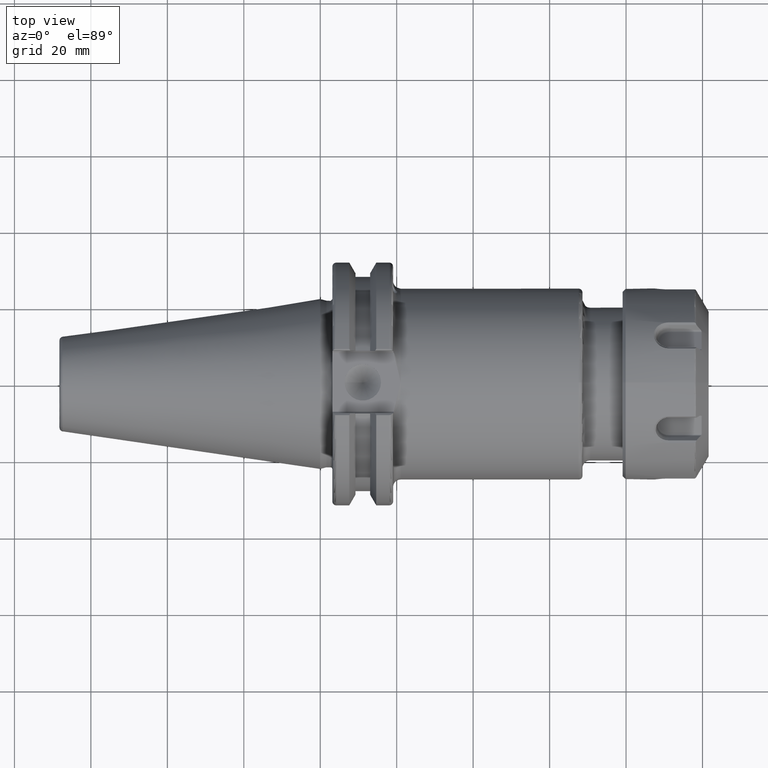
[diagram: clean part render]
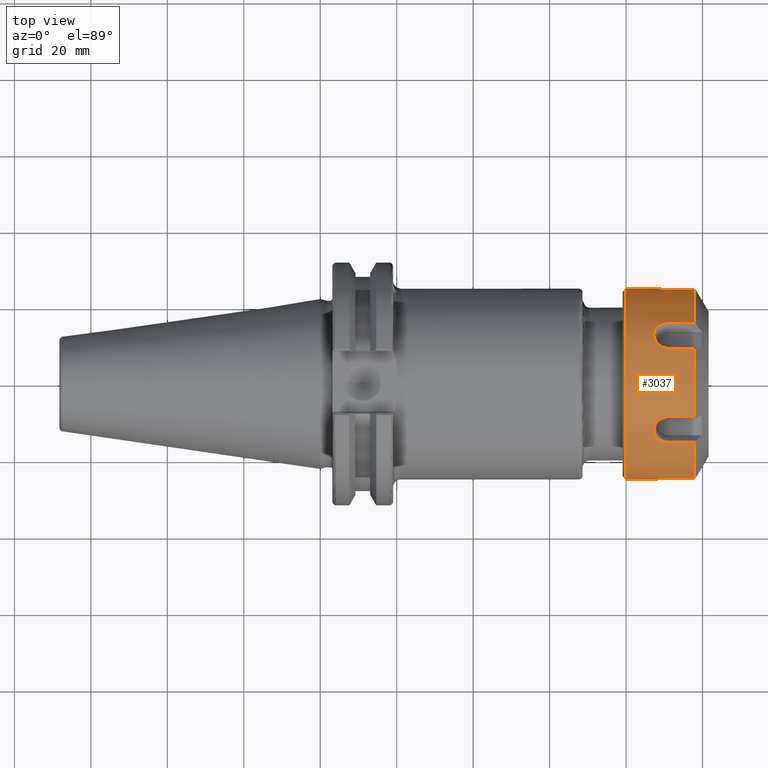
[diagram: same view with one face highlighted and labeled with its STEP entity id]
A machine part, top view. The second image highlights one B-rep face of the part: STEP entity #3037.
In plain terms, the highlighted cylindrical surface (bore or boss wall) has radius 25 mm, axis along (1, 0, 0).
Its self-contained STEP definition (entity closure, byte-faithful):
#243=B_SPLINE_CURVE_WITH_KNOTS('',3,(#5688,#5689,#5690,#5691,#5692,#5693,
#5694,#5695,#5696,#5697,#5698,#5699,#5700,#5701,#5702,#5703,#5704,#5705,
#5706,#5707,#5708,#5709,#5710,#5711,#5712,#5713),.UNSPECIFIED.,.F.,.F.,
(4,2,2,2,2,2,2,2,2,2,2,2,4),(9.9999995238631E-7,0.0879052907423527,0.176637565379742,
0.235903650970046,0.390130017504631,0.466901397524831,0.619877047493406,
0.772895245938568,0.849748430711965,1.00354549994743,1.06255814926592,1.15065991936563,
1.23696691744975),.UNSPECIFIED.);
#244=B_SPLINE_CURVE_WITH_KNOTS('',3,(#5721,#5722,#5723,#5724,#5725,#5726,
#5727,#5728,#5729,#5730,#5731,#5732,#5733,#5734,#5735,#5736,#5737,#5738,
#5739,#5740,#5741,#5742,#5743,#5744,#5745,#5746),.UNSPECIFIED.,.F.,.F.,
(4,2,2,2,2,2,2,2,2,2,2,2,4),(1.00000009417567E-6,0.0878138369275421,0.176555140054308,
0.235820765056358,0.389974853515028,0.466697048924996,0.619573178814066,
0.772490695512649,0.849291747057756,1.00296705428542,1.06195384990398,1.14997782321717,
1.23616298191316),.UNSPECIFIED.);
#245=B_SPLINE_CURVE_WITH_KNOTS('',3,(#5754,#5755,#5756,#5757,#5758,#5759,
#5760,#5761,#5762,#5763,#5764,#5765,#5766,#5767,#5768,#5769,#5770,#5771,
#5772,#5773,#5774,#5775,#5776,#5777,#5778,#5779),.UNSPECIFIED.,.F.,.F.,
(4,2,2,2,2,2,2,2,2,2,2,2,4),(9.99999951775687E-7,0.0878941569707288,0.176624334532777,
0.235888687428025,0.390110943020404,0.466875792134982,0.61983845664042,
0.772844514946801,0.849692191333624,1.003474767993,1.06248200532863,1.15057983966351,
1.23688736597224),.UNSPECIFIED.);
#246=B_SPLINE_CURVE_WITH_KNOTS('',3,(#5787,#5788,#5789,#5790,#5791,#5792,
#5793,#5794,#5795,#5796,#5797,#5798,#5799,#5800,#5801,#5802,#5803,#5804,
#5805,#5806,#5807,#5808,#5809,#5810,#5811,#5812),.UNSPECIFIED.,.F.,.F.,
(4,2,2,2,2,2,2,2,2,2,2,2,4),(9.99999952469577E-7,0.087905230227901,0.176637529735317,
0.23590362205516,0.390129919451193,0.466901259045231,0.619876828803479,
0.772894942890079,0.849748081258391,1.00354500406063,1.06255762506737,1.1506592888794,
1.2369661055211),.UNSPECIFIED.);
#247=B_SPLINE_CURVE_WITH_KNOTS('',3,(#5817,#5818,#5819,#5820,#5821,#5822,
#5823,#5824,#5825,#5826,#5827,#5828,#5829,#5830,#5831,#5832,#5833,#5834,
#5835,#5836,#5837,#5838,#5839,#5840,#5841,#5842),.UNSPECIFIED.,.F.,.F.,
(4,2,2,2,2,2,2,2,2,2,2,2,4),(1.00000009425893E-6,0.0878137755469969,0.176555099847401,
0.235820733272125,0.389974766086827,0.466696934474965,0.619573008826759,
0.772490466286766,0.849291481801536,1.00296667617739,1.06195345833607,1.14997734942518,
1.23616236019383),.UNSPECIFIED.);
#248=B_SPLINE_CURVE_WITH_KNOTS('',3,(#5850,#5851,#5852,#5853,#5854,#5855,
#5856,#5857,#5858,#5859,#5860,#5861,#5862,#5863,#5864,#5865,#5866,#5867,
#5868,#5869,#5870,#5871,#5872,#5873,#5874,#5875),.UNSPECIFIED.,.F.,.F.,
(4,2,2,2,2,2,2,2,2,2,2,2,4),(9.99999951900588E-7,0.0878942147625397,0.176624366940175,
0.23588871226361,0.390111034009128,0.466875921238402,0.619838663234569,
0.772844800309569,0.849692521299405,1.00347524440874,1.06248250865998,1.15058044952841,
1.2368881619258),.UNSPECIFIED.);
#318=CYLINDRICAL_SURFACE('',#3406,25.);
#529=FACE_OUTER_BOUND('',#723,.T.);
#723=EDGE_LOOP('',(#2603,#2604,#2605,#2606,#2607,#2608,#2609,#2610,#2611,
#2612,#2613,#2614,#2615,#2616,#2617,#2618,#2619,#2620,#2621,#2622,#2623,
#2624,#2625,#2626,#2627,#2628,#2629,#2630));
#889=LINE('',#5681,#1062);
#890=LINE('',#5686,#1063);
#891=LINE('',#5715,#1064);
#892=LINE('',#5719,#1065);
#893=LINE('',#5748,#1066);
#894=LINE('',#5752,#1067);
#895=LINE('',#5781,#1068);
#896=LINE('',#5785,#1069);
#897=LINE('',#5813,#1070);
#898=LINE('',#5815,#1071);
#899=LINE('',#5844,#1072);
#900=LINE('',#5848,#1073);
#901=LINE('',#5876,#1074);
#1062=VECTOR('',#4061,25.);
#1063=VECTOR('',#4066,6.64722344657);
#1064=VECTOR('',#4067,6.647223564864);
#1065=VECTOR('',#4070,6.647222883786);
#1066=VECTOR('',#4071,6.647222910959);
#1067=VECTOR('',#4074,6.647223440681);
#1068=VECTOR('',#4075,6.647223598116);
#1069=VECTOR('',#4078,6.647223446385);
#1070=VECTOR('',#4079,6.647223564616);
#1071=VECTOR('',#4080,6.64722288378);
#1072=VECTOR('',#4081,6.647222910886);
#1073=VECTOR('',#4084,6.647223440838);
#1074=VECTOR('',#4085,6.647223598416);
#1237=CIRCLE('',#3405,25.);
#1238=CIRCLE('',#3407,25.);
#1239=CIRCLE('',#3408,25.);
#1240=CIRCLE('',#3409,25.);
#1241=CIRCLE('',#3410,25.);
#1242=CIRCLE('',#3411,25.);
#1243=CIRCLE('',#3412,25.);
#1244=CIRCLE('',#3413,25.);
#1497=VERTEX_POINT('',#5657);
#1498=VERTEX_POINT('',#5658);
#1499=VERTEX_POINT('',#5677);
#1500=VERTEX_POINT('',#5678);
#1501=VERTEX_POINT('',#5680);
#1502=VERTEX_POINT('',#5683);
#1503=VERTEX_POINT('',#5685);
#1504=VERTEX_POINT('',#5687);
#1505=VERTEX_POINT('',#5714);
#1506=VERTEX_POINT('',#5716);
#1507=VERTEX_POINT('',#5718);
#1508=VERTEX_POINT('',#5720);
#1509=VERTEX_POINT('',#5747);
#1510=VERTEX_POINT('',#5749);
#1511=VERTEX_POINT('',#5751);
#1512=VERTEX_POINT('',#5753);
#1513=VERTEX_POINT('',#5780);
#1514=VERTEX_POINT('',#5782);
#1515=VERTEX_POINT('',#5784);
#1516=VERTEX_POINT('',#5786);
#1517=VERTEX_POINT('',#5814);
#1518=VERTEX_POINT('',#5816);
#1519=VERTEX_POINT('',#5843);
#1520=VERTEX_POINT('',#5845);
#1521=VERTEX_POINT('',#5847);
#1522=VERTEX_POINT('',#5849);
#1879=EDGE_CURVE('',#1497,#1498,#1237,.T.);
#1882=EDGE_CURVE('',#1499,#1500,#1238,.T.);
#1883=EDGE_CURVE('',#1500,#1501,#889,.T.);
#1884=EDGE_CURVE('',#1501,#1501,#1239,.T.);
#1885=EDGE_CURVE('',#1500,#1502,#1240,.T.);
#1886=EDGE_CURVE('',#1502,#1503,#890,.T.);
#1887=EDGE_CURVE('',#1503,#1504,#243,.T.);
#1888=EDGE_CURVE('',#1504,#1505,#891,.T.);
#1889=EDGE_CURVE('',#1505,#1506,#1241,.T.);
#1890=EDGE_CURVE('',#1506,#1507,#892,.T.);
#1891=EDGE_CURVE('',#1507,#1508,#244,.T.);
#1892=EDGE_CURVE('',#1508,#1509,#893,.T.);
#1893=EDGE_CURVE('',#1509,#1510,#1242,.T.);
#1894=EDGE_CURVE('',#1510,#1511,#894,.T.);
#1895=EDGE_CURVE('',#1511,#1512,#245,.T.);
#1896=EDGE_CURVE('',#1512,#1513,#895,.T.);
#1897=EDGE_CURVE('',#1513,#1514,#1243,.T.);
#1898=EDGE_CURVE('',#1514,#1515,#896,.T.);
#1899=EDGE_CURVE('',#1515,#1516,#246,.T.);
#1900=EDGE_CURVE('',#1516,#1497,#897,.T.);
#1901=EDGE_CURVE('',#1498,#1517,#898,.T.);
#1902=EDGE_CURVE('',#1517,#1518,#247,.T.);
#1903=EDGE_CURVE('',#1518,#1519,#899,.T.);
#1904=EDGE_CURVE('',#1519,#1520,#1244,.T.);
#1905=EDGE_CURVE('',#1520,#1521,#900,.T.);
#1906=EDGE_CURVE('',#1521,#1522,#248,.T.);
#1907=EDGE_CURVE('',#1522,#1499,#901,.T.);
#2603=ORIENTED_EDGE('',*,*,#1882,.T.);
#2604=ORIENTED_EDGE('',*,*,#1883,.T.);
#2605=ORIENTED_EDGE('',*,*,#1884,.F.);
#2606=ORIENTED_EDGE('',*,*,#1883,.F.);
#2607=ORIENTED_EDGE('',*,*,#1885,.T.);
#2608=ORIENTED_EDGE('',*,*,#1886,.T.);
#2609=ORIENTED_EDGE('',*,*,#1887,.T.);
#2610=ORIENTED_EDGE('',*,*,#1888,.T.);
#2611=ORIENTED_EDGE('',*,*,#1889,.T.);
#2612=ORIENTED_EDGE('',*,*,#1890,.T.);
#2613=ORIENTED_EDGE('',*,*,#1891,.T.);
#2614=ORIENTED_EDGE('',*,*,#1892,.T.);
#2615=ORIENTED_EDGE('',*,*,#1893,.T.);
#2616=ORIENTED_EDGE('',*,*,#1894,.T.);
#2617=ORIENTED_EDGE('',*,*,#1895,.T.);
#2618=ORIENTED_EDGE('',*,*,#1896,.T.);
#2619=ORIENTED_EDGE('',*,*,#1897,.T.);
#2620=ORIENTED_EDGE('',*,*,#1898,.T.);
#2621=ORIENTED_EDGE('',*,*,#1899,.T.);
#2622=ORIENTED_EDGE('',*,*,#1900,.T.);
#2623=ORIENTED_EDGE('',*,*,#1879,.T.);
#2624=ORIENTED_EDGE('',*,*,#1901,.T.);
#2625=ORIENTED_EDGE('',*,*,#1902,.T.);
#2626=ORIENTED_EDGE('',*,*,#1903,.T.);
#2627=ORIENTED_EDGE('',*,*,#1904,.T.);
#2628=ORIENTED_EDGE('',*,*,#1905,.T.);
#2629=ORIENTED_EDGE('',*,*,#1906,.T.);
#2630=ORIENTED_EDGE('',*,*,#1907,.T.);
#3037=ADVANCED_FACE('',(#529),#318,.T.);
#3405=AXIS2_PLACEMENT_3D('',#5659,#4055,#4056);
#3406=AXIS2_PLACEMENT_3D('',#5676,#4057,#4058);
#3407=AXIS2_PLACEMENT_3D('',#5679,#4059,#4060);
#3408=AXIS2_PLACEMENT_3D('',#5682,#4062,#4063);
#3409=AXIS2_PLACEMENT_3D('',#5684,#4064,#4065);
#3410=AXIS2_PLACEMENT_3D('',#5717,#4068,#4069);
#3411=AXIS2_PLACEMENT_3D('',#5750,#4072,#4073);
#3412=AXIS2_PLACEMENT_3D('',#5783,#4076,#4077);
#3413=AXIS2_PLACEMENT_3D('',#5846,#4082,#4083);
#4055=DIRECTION('center_axis',(-1.,0.,0.));
#4056=DIRECTION('ref_axis',(0.,-0.631277286733596,-0.775557210819595));
#4057=DIRECTION('center_axis',(1.,0.,0.));
#4058=DIRECTION('ref_axis',(0.,0.,-1.));
#4059=DIRECTION('center_axis',(-1.,0.,0.));
#4060=DIRECTION('ref_axis',(0.,0.,1.));
#4061=DIRECTION('',(-1.,0.,0.));
#4062=DIRECTION('center_axis',(-1.,0.,0.));
#4063=DIRECTION('ref_axis',(0.,0.,-1.));
#4064=DIRECTION('center_axis',(-1.,0.,0.));
#4065=DIRECTION('ref_axis',(0.,0.,1.));
#4066=DIRECTION('',(-1.,-1.159560992356E-10,2.11509500553E-11));
#4067=DIRECTION('',(1.,-1.276633033488E-10,1.526081585287E-10));
#4068=DIRECTION('center_axis',(-1.,0.,0.));
#4069=DIRECTION('ref_axis',(0.,0.631277286733596,0.775557210819595));
#4070=DIRECTION('',(-1.,7.686741409635E-11,-2.238710456628E-10));
#4071=DIRECTION('',(1.,-7.310370522877E-11,-1.968159154923E-10));
#4072=DIRECTION('center_axis',(-1.,0.,0.));
#4073=DIRECTION('ref_axis',(0.,0.987290890024773,-0.158923561733596));
#4074=DIRECTION('',(-1.,7.459753134974E-11,8.763849718101E-11));
#4075=DIRECTION('',(1.,2.171785744726E-10,3.807106787261E-11));
#4076=DIRECTION('center_axis',(-1.,0.,0.));
#4077=DIRECTION('ref_axis',(0.,0.,-1.));
#4078=DIRECTION('',(-1.,1.158545507345E-10,-2.113331268409E-11));
#4079=DIRECTION('',(1.,1.275572118917E-10,-1.524830935366E-10));
#4080=DIRECTION('',(-1.,-7.687115535743E-11,2.238859438988E-10));
#4081=DIRECTION('',(1.,7.311706687595E-11,1.968496536516E-10));
#4082=DIRECTION('center_axis',(-1.,0.,0.));
#4083=DIRECTION('ref_axis',(0.,-0.987290890024773,0.158923561733596));
#4084=DIRECTION('',(-1.,-7.46531157925E-11,-8.770583987134E-11));
#4085=DIRECTION('',(1.,-2.173739217127E-10,-3.81079460111E-11));
#5657=CARTESIAN_POINT('',(7.497223250267,-15.78193216834,-19.38893027049));
#5658=CARTESIAN_POINT('',(7.497223250267,-24.68227225062,-3.97308904334));
#5659=CARTESIAN_POINT('Origin',(7.497223250267,0.,0.));
#5676=CARTESIAN_POINT('Origin',(-11.25,0.,0.));
#5677=CARTESIAN_POINT('',(7.497223250268,-8.90034008228,23.36201931383));
#5678=CARTESIAN_POINT('',(7.497223250268,-3.06161699786838E-15,25.));
#5679=CARTESIAN_POINT('Origin',(7.497223250267,0.,0.));
#5680=CARTESIAN_POINT('',(-10.45,0.,25.));
#5681=CARTESIAN_POINT('',(-11.25,-3.06161699786838E-15,25.));
#5682=CARTESIAN_POINT('Origin',(-10.45,0.,0.));
#5683=CARTESIAN_POINT('',(7.497223250267,8.90034008228,23.36201931383));
#5684=CARTESIAN_POINT('Origin',(7.497223250267,0.,0.));
#5685=CARTESIAN_POINT('',(0.849999803697,8.900340081509,23.36201931397));
#5686=CARTESIAN_POINT('',(7.497223250267,8.90034008228,23.36201931383));
#5687=CARTESIAN_POINT('',(0.849999685403604,15.7819321692076,19.3889302699045));
#5688=CARTESIAN_POINT('Ctrl Pts',(0.849999803697697,8.90034008142218,23.3620193141567));
#5689=CARTESIAN_POINT('Ctrl Pts',(0.556988214806367,8.89906306446611,23.3625058254058));
#5690=CARTESIAN_POINT('Ctrl Pts',(0.26261724777573,8.93153175889461,23.3502062834946));
#5691=CARTESIAN_POINT('Ctrl Pts',(-0.31125534425957,9.05580002296358,23.3022952116997));
#5692=CARTESIAN_POINT('Ctrl Pts',(-0.593923216593934,9.14887656054965,23.2661811432127));
#5693=CARTESIAN_POINT('Ctrl Pts',(-1.04056938179903,9.35159728105322,23.1852381718461));
#5694=CARTESIAN_POINT('Ctrl Pts',(-1.21262512280427,9.44524603269654,23.1473582448027));
#5695=CARTESIAN_POINT('Ctrl Pts',(-1.80200428015579,9.82286285775052,22.9912699438263));
#5696=CARTESIAN_POINT('Ctrl Pts',(-2.16698210272784,10.1683862390945,22.8428160957234));
#5697=CARTESIAN_POINT('Ctrl Pts',(-2.59176378383641,10.7606138713495,22.5667088807953));
#5698=CARTESIAN_POINT('Ctrl Pts',(-2.7113454614375,10.9677985476459,22.466974573432));
#5699=CARTESIAN_POINT('Ctrl Pts',(-3.00077380839491,11.6099006832519,22.1458509566706));
#5700=CARTESIAN_POINT('Ctrl Pts',(-3.09929483965554,12.0593085624536,21.9052093593481));
#5701=CARTESIAN_POINT('Ctrl Pts',(-3.09776452633922,12.9511394909136,21.3900269627963));
#5702=CARTESIAN_POINT('Ctrl Pts',(-2.99750238481055,13.3841619924121,21.1208830779851));
#5703=CARTESIAN_POINT('Ctrl Pts',(-2.7062196300935,13.9819654737833,20.7258782143283));
#5704=CARTESIAN_POINT('Ctrl Pts',(-2.58612454090403,14.1712825668685,20.5966440251347));
#5705=CARTESIAN_POINT('Ctrl Pts',(-2.1603467743026,14.7040545894526,20.2232287059954));
#5706=CARTESIAN_POINT('Ctrl Pts',(-1.79444321211271,15.0055297377623,19.9980251897456));
#5707=CARTESIAN_POINT('Ctrl Pts',(-1.20143698934867,15.3289483623426,19.7493326814338));
#5708=CARTESIAN_POINT('Ctrl Pts',(-1.02817443647387,15.4085047352194,19.6871927068306));
#5709=CARTESIAN_POINT('Ctrl Pts',(-0.58042265698393,15.5788973434881,19.5528729525399));
#5710=CARTESIAN_POINT('Ctrl Pts',(-0.297961571865993,15.6556420407217,19.491156670446));
#5711=CARTESIAN_POINT('Ctrl Pts',(0.271006084886863,15.7568242876686,19.4094469361681));
#5712=CARTESIAN_POINT('Ctrl Pts',(0.561474266649588,15.7830370456073,19.3880309378373));
#5713=CARTESIAN_POINT('Ctrl Pts',(0.849999685406121,15.7819321695438,19.3889302695099));
#5714=CARTESIAN_POINT('',(7.497223250267,15.78193216834,19.38893027049));
#5715=CARTESIAN_POINT('',(0.8499996854036,15.78193216919,19.38893026948));
#5716=CARTESIAN_POINT('',(7.497223250267,24.68227225062,3.97308904334));
#5717=CARTESIAN_POINT('Origin',(7.497223250267,0.,0.));
#5718=CARTESIAN_POINT('',(0.850000366480997,24.6822722506958,3.97308904208401));
#5719=CARTESIAN_POINT('',(7.497223250267,24.68227225062,3.97308904334));
#5720=CARTESIAN_POINT('',(0.850000339308605,24.6822722507043,-3.97308904224118));
#5721=CARTESIAN_POINT('Ctrl Pts',(0.850000366478154,24.6822722509095,3.97308904153725));
#5722=CARTESIAN_POINT('Ctrl Pts',(0.557294497669207,24.6820409332602,3.97452607079518));
#5723=CARTESIAN_POINT('Ctrl Pts',(0.263034905527892,24.6876282992806,3.94022707287879));
#5724=CARTESIAN_POINT('Ctrl Pts',(-0.310624708582617,24.7082532173941,3.80876574427735));
#5725=CARTESIAN_POINT('Ctrl Pts',(-0.593535322999683,24.7235180287989,3.71009378532804));
#5726=CARTESIAN_POINT('Ctrl Pts',(-1.04042566812709,24.7547905938333,3.49399302569406));
#5727=CARTESIAN_POINT('Ctrl Pts',(-1.21254919832008,24.7688154773776,3.39391485580949));
#5728=CARTESIAN_POINT('Ctrl Pts',(-1.80198115808831,24.8224544368331,2.98879308315158));
#5729=CARTESIAN_POINT('Ctrl Pts',(-2.16697388575954,24.8666505619373,2.61535441741271));
#5730=CARTESIAN_POINT('Ctrl Pts',(-2.59178778931038,24.92365351717,1.96434603146938));
#5731=CARTESIAN_POINT('Ctrl Pts',(-2.71136848645338,24.9408733026292,1.73504792986882));
#5732=CARTESIAN_POINT('Ctrl Pts',(-3.00078606826906,24.9838218195907,1.01840807604434));
#5733=CARTESIAN_POINT('Ctrl Pts',(-3.0993028419261,25.0001233489757,0.508880440566308));
#5734=CARTESIAN_POINT('Ctrl Pts',(-3.09775592856053,24.9998751658127,-0.521068163364782));
#5735=CARTESIAN_POINT('Ctrl Pts',(-2.99748962718334,24.9833001654694,-1.03064042731025));
#5736=CARTESIAN_POINT('Ctrl Pts',(-2.70618364407116,24.9401147277223,-1.74587069260613));
#5737=CARTESIAN_POINT('Ctrl Pts',(-2.58608154336521,24.9228521354282,-1.97444615940644));
#5738=CARTESIAN_POINT('Ctrl Pts',(-2.16030739196055,24.8658522836497,-2.62250914857131));
#5739=CARTESIAN_POINT('Ctrl Pts',(-1.79436689913953,24.8215515646109,-2.99625080202018));
#5740=CARTESIAN_POINT('Ctrl Pts',(-1.20119063797433,24.7678777919271,-3.40074094799123));
#5741=CARTESIAN_POINT('Ctrl Pts',(-1.02780726547281,24.7538337943837,-3.5007558388354));
#5742=CARTESIAN_POINT('Ctrl Pts',(-0.57993242825243,24.7227037314635,-3.71548078628951));
#5743=CARTESIAN_POINT('Ctrl Pts',(-0.297500400940775,24.7076344943419,-3.8127559573514));
#5744=CARTESIAN_POINT('Ctrl Pts',(0.271335149640932,24.6874811043476,-3.94111771153634));
#5745=CARTESIAN_POINT('Ctrl Pts',(0.561629895983728,24.6820500906169,-3.97446918196907));
#5746=CARTESIAN_POINT('Ctrl Pts',(0.850000339305959,24.6822722508806,-3.97308904171685));
#5747=CARTESIAN_POINT('',(7.497223250268,24.68227225062,-3.97308904334));
#5748=CARTESIAN_POINT('',(0.8500003393086,24.68227225111,-3.973089042032));
#5749=CARTESIAN_POINT('',(7.497223250267,15.78193216834,-19.38893027049));
#5750=CARTESIAN_POINT('Origin',(7.497223250267,0.,0.));
#5751=CARTESIAN_POINT('',(0.8499998095868,15.78193216884,-19.38893026991));
#5752=CARTESIAN_POINT('',(7.497223250267,15.78193216834,-19.38893027049));
#5753=CARTESIAN_POINT('',(0.849999652151898,8.9003400812355,-23.3620193143348));
#5754=CARTESIAN_POINT('Ctrl Pts',(0.849999809587455,15.7819321690314,-19.388930269927));
#5755=CARTESIAN_POINT('Ctrl Pts',(0.557025369885156,15.7829980050107,-19.3880627155599));
#5756=CARTESIAN_POINT('Ctrl Pts',(0.262675665419089,15.7561118985817,-19.4100316628817));
#5757=CARTESIAN_POINT('Ctrl Pts',(-0.311159833993218,15.6525006411461,-19.4936835675112));
#5758=CARTESIAN_POINT('Ctrl Pts',(-0.593840633201923,15.5746913168734,-19.5562296068684));
#5759=CARTESIAN_POINT('Ctrl Pts',(-1.04049668297782,15.403239164722,-19.6913144147476));
#5760=CARTESIAN_POINT('Ctrl Pts',(-1.21255491236126,15.3236123662618,-19.7534748809016));
#5761=CARTESIAN_POINT('Ctrl Pts',(-1.80194679962227,14.9996337962951,-20.0024526328214));
#5762=CARTESIAN_POINT('Ctrl Pts',(-2.1669397631711,14.6983102699169,-20.2274569151732));
#5763=CARTESIAN_POINT('Ctrl Pts',(-2.59173725648885,14.1630745020536,-20.6022930459227));
#5764=CARTESIAN_POINT('Ctrl Pts',(-2.71132198135434,13.9731117990341,-20.7318522175723));
#5765=CARTESIAN_POINT('Ctrl Pts',(-3.00075773487278,13.373969361295,-21.1273624749268));
#5766=CARTESIAN_POINT('Ctrl Pts',(-3.09928659367179,12.9408668890439,-21.3962398800997));
#5767=CARTESIAN_POINT('Ctrl Pts',(-3.097773088459,12.0487946985416,-21.910997549218));
#5768=CARTESIAN_POINT('Ctrl Pts',(-2.99751888676549,11.5991963059453,-22.1514365564187));
#5769=CARTESIAN_POINT('Ctrl Pts',(-2.70624789524791,10.9582063227418,-22.4716510718305));
#5770=CARTESIAN_POINT('Ctrl Pts',(-2.58615666054098,10.7516266524235,-22.5709884782248));
#5771=CARTESIAN_POINT('Ctrl Pts',(-2.16039048328996,10.1618512048838,-22.8456774849883));
#5772=CARTESIAN_POINT('Ctrl Pts',(-1.7945021387392,9.81608449697471,-22.9941606065572));
#5773=CARTESIAN_POINT('Ctrl Pts',(-1.20151793692967,9.4389954616508,-23.1499063580654));
#5774=CARTESIAN_POINT('Ctrl Pts',(-1.028263612225,9.34540144282152,-23.1877348445077));
#5775=CARTESIAN_POINT('Ctrl Pts',(-0.580512521766439,9.14386869688795,-23.2681445561124));
#5776=CARTESIAN_POINT('Ctrl Pts',(-0.298040711577729,9.05203886583955,-23.3037531206632));
#5777=CARTESIAN_POINT('Ctrl Pts',(0.27095582987275,8.93066685711114,-23.3505317486243));
#5778=CARTESIAN_POINT('Ctrl Pts',(0.561450721911353,8.89900623363858,-23.3625274765176));
#5779=CARTESIAN_POINT('Ctrl Pts',(0.849999652154695,8.90034008067135,-23.3620193144427));
#5780=CARTESIAN_POINT('',(7.497223250268,8.90034008228,-23.36201931383));
#5781=CARTESIAN_POINT('',(0.8499996521519,8.900340080836,-23.36201931408));
#5782=CARTESIAN_POINT('',(7.497223250267,-8.90034008228,-23.36201931383));
#5783=CARTESIAN_POINT('Origin',(7.497223250267,0.,0.));
#5784=CARTESIAN_POINT('',(0.849999803882,-8.90034008151,-23.36201931397));
#5785=CARTESIAN_POINT('',(7.497223250267,-8.90034008228,-23.36201931383));
#5786=CARTESIAN_POINT('',(0.849999685651404,-15.7819321692076,-19.3889302699042));
#5787=CARTESIAN_POINT('Ctrl Pts',(0.849999803882699,-8.90034008142275,-23.3620193141565));
#5788=CARTESIAN_POINT('Ctrl Pts',(0.556988417090433,-8.89906298797539,-23.3625058545468));
#5789=CARTESIAN_POINT('Ctrl Pts',(0.262617484675315,-8.93153172454629,-23.350206296481));
#5790=CARTESIAN_POINT('Ctrl Pts',(-0.31125503345258,-9.05579994887462,-23.3022952405232));
#5791=CARTESIAN_POINT('Ctrl Pts',(-0.593923175177775,-9.14887653203464,
-23.2661811549686));
#5792=CARTESIAN_POINT('Ctrl Pts',(-1.04056961939119,-9.35159738833183,-23.1852381287642));
#5793=CARTESIAN_POINT('Ctrl Pts',(-1.21262543478727,-9.44524620134965,-23.1473581763874));
#5794=CARTESIAN_POINT('Ctrl Pts',(-1.80200461178382,-9.82286314551591,-22.9912698215014));
#5795=CARTESIAN_POINT('Ctrl Pts',(-2.16698238730809,-10.1683865399387,-22.842815963009));
#5796=CARTESIAN_POINT('Ctrl Pts',(-2.59176401185802,-10.7606142381187,-22.5667087060453));
#5797=CARTESIAN_POINT('Ctrl Pts',(-2.71134566157983,-10.9677989211266,-22.4669743912144));
#5798=CARTESIAN_POINT('Ctrl Pts',(-3.00077392462613,-11.6099010788075,-22.145850749752));
#5799=CARTESIAN_POINT('Ctrl Pts',(-3.09929490237588,-12.0593089791445,-21.9052091303768));
#5800=CARTESIAN_POINT('Ctrl Pts',(-3.09776446127798,-12.9511399168306,-21.3900267050165));
#5801=CARTESIAN_POINT('Ctrl Pts',(-2.99750226544645,-13.3841623896175,-21.1208828264868));
#5802=CARTESIAN_POINT('Ctrl Pts',(-2.70621940029455,-13.981965864473,-20.7258779506717));
#5803=CARTESIAN_POINT('Ctrl Pts',(-2.58612428050563,-14.1712829492659,-20.5966437619939));
#5804=CARTESIAN_POINT('Ctrl Pts',(-2.16034649156988,-14.7040548326557,-20.2232285257743));
#5805=CARTESIAN_POINT('Ctrl Pts',(-1.79444286027964,-15.0055300282739,-19.9980249715318));
#5806=CARTESIAN_POINT('Ctrl Pts',(-1.20143633648498,-15.3289486747771,-19.7493324392019));
#5807=CARTESIAN_POINT('Ctrl Pts',(-1.02817358892061,-15.4085050936274,-19.6871924264029));
#5808=CARTESIAN_POINT('Ctrl Pts',(-0.580421638460918,-15.578897663397,-19.5528726972162));
#5809=CARTESIAN_POINT('Ctrl Pts',(-0.29796063247918,-15.6556422784557,-19.4911564791808));
#5810=CARTESIAN_POINT('Ctrl Pts',(0.271006732571219,-15.7568243368419,-19.4094468957558));
#5811=CARTESIAN_POINT('Ctrl Pts',(0.561474566374845,-15.783037008791,-19.3880309678045));
#5812=CARTESIAN_POINT('Ctrl Pts',(0.849999685653918,-15.7819321695437,-19.3889302695101));
#5813=CARTESIAN_POINT('',(0.8499996856514,-15.78193216919,-19.38893026948));
#5814=CARTESIAN_POINT('',(0.850000366487002,-24.6822722506944,-3.97308904208506));
#5815=CARTESIAN_POINT('',(7.497223250267,-24.68227225062,-3.97308904334));
#5816=CARTESIAN_POINT('',(0.850000339381803,-24.6822722507043,3.97308904224024));
#5817=CARTESIAN_POINT('Ctrl Pts',(0.850000366484182,-24.6822722509085,-3.97308904154322));
#5818=CARTESIAN_POINT('Ctrl Pts',(0.557294702605885,-24.6820409227316,-3.9745261362024));
#5819=CARTESIAN_POINT('Ctrl Pts',(0.263035170971378,-24.6876282932209,-3.94022710982265));
#5820=CARTESIAN_POINT('Ctrl Pts',(-0.310624355114414,-24.7082532025874,
-3.80876584035195));
#5821=CARTESIAN_POINT('Ctrl Pts',(-0.593535201964998,-24.723518019902,-3.71009384760263));
#5822=CARTESIAN_POINT('Ctrl Pts',(-1.04042581583032,-24.7547906037586,-3.49399295657698));
#5823=CARTESIAN_POINT('Ctrl Pts',(-1.21254943345289,-24.7688154964352,-3.39391471935169));
#5824=CARTESIAN_POINT('Ctrl Pts',(-1.80198145796997,-24.8224544699939,-2.98879281324205));
#5825=CARTESIAN_POINT('Ctrl Pts',(-2.1669741424005,-24.8666505944732,-2.61535411204491));
#5826=CARTESIAN_POINT('Ctrl Pts',(-2.5917879829837,-24.9236535443726,-1.96434568784534));
#5827=CARTESIAN_POINT('Ctrl Pts',(-2.71136865435767,-24.9408733268036,-1.73504758349885));
#5828=CARTESIAN_POINT('Ctrl Pts',(-3.00078616250206,-24.983821834725,-1.01840770992754));
#5829=CARTESIAN_POINT('Ctrl Pts',(-3.099302894733,-25.0001233574372,-0.508880044269458));
#5830=CARTESIAN_POINT('Ctrl Pts',(-3.09775587354793,-24.9998751571517,0.521068585587671));
#5831=CARTESIAN_POINT('Ctrl Pts',(-2.9974895308937,-24.9833001498174,1.03064081999437));
#5832=CARTESIAN_POINT('Ctrl Pts',(-2.70618343974291,-24.9401146985933,1.74587110800806));
#5833=CARTESIAN_POINT('Ctrl Pts',(-2.58608130801534,-24.922852102263,1.97444657782198));
#5834=CARTESIAN_POINT('Ctrl Pts',(-2.16030712376141,-24.8658522502598,2.62250944547686));
#5835=CARTESIAN_POINT('Ctrl Pts',(-1.79436656231922,-24.821551523842,2.99625113685204));
#5836=CARTESIAN_POINT('Ctrl Pts',(-1.20119005677232,-24.7678777440183,3.40074129844431));
#5837=CARTESIAN_POINT('Ctrl Pts',(-1.02780650851633,-24.7538337373964,3.50075624225715));
#5838=CARTESIAN_POINT('Ctrl Pts',(-0.579931522851014,-24.722703677284,3.7154811445682));
#5839=CARTESIAN_POINT('Ctrl Pts',(-0.297499575773513,-24.7076344531182,
3.81275622307523));
#5840=CARTESIAN_POINT('Ctrl Pts',(0.271335721323621,-24.6874810952106,3.94111776663741));
#5841=CARTESIAN_POINT('Ctrl Pts',(0.561630156143936,-24.6820500978386,3.97446913710484));
#5842=CARTESIAN_POINT('Ctrl Pts',(0.850000339379152,-24.6822722508809,3.97308904171478));
#5843=CARTESIAN_POINT('',(7.497223250268,-24.68227225062,3.97308904334));
#5844=CARTESIAN_POINT('',(0.8500003393818,-24.68227225111,3.973089042031));
#5845=CARTESIAN_POINT('',(7.497223250267,-15.78193216834,19.38893027049));
#5846=CARTESIAN_POINT('Origin',(7.497223250267,0.,0.));
#5847=CARTESIAN_POINT('',(0.8499998094295,-15.78193216884,19.38893026991));
#5848=CARTESIAN_POINT('',(7.497223250267,-15.78193216834,19.38893027049));
#5849=CARTESIAN_POINT('',(0.849999651852296,-8.90034008123596,23.3620193143355));
#5850=CARTESIAN_POINT('Ctrl Pts',(0.849999809430154,-15.7819321690312,19.3889302699272));
#5851=CARTESIAN_POINT('Ctrl Pts',(0.557025176716573,-15.7829979439113,19.3880627652928));
#5852=CARTESIAN_POINT('Ctrl Pts',(0.262675441155053,-15.7561118716186,19.4100316849424));
#5853=CARTESIAN_POINT('Ctrl Pts',(-0.311160122982868,-15.6525005835907,
19.4936836136848));
#5854=CARTESIAN_POINT('Ctrl Pts',(-0.593840657899816,-15.5746912975547,
19.5562296216016));
#5855=CARTESIAN_POINT('Ctrl Pts',(-1.04049643030193,-15.4032392626439,19.6913143379221));
#5856=CARTESIAN_POINT('Ctrl Pts',(-1.21255458411809,-15.3236125181208,19.7534747626191));
#5857=CARTESIAN_POINT('Ctrl Pts',(-1.80194644863257,-14.9996340588767,20.0024524351356));
#5858=CARTESIAN_POINT('Ctrl Pts',(-2.16693946096328,-14.6983105528687,20.2274567082299));
#5859=CARTESIAN_POINT('Ctrl Pts',(-2.59173701581922,-14.1630748551654,20.6022928030051));
#5860=CARTESIAN_POINT('Ctrl Pts',(-2.71132176997088,-13.9731121627719,20.7318519722849));
#5861=CARTESIAN_POINT('Ctrl Pts',(-3.00075761371708,-13.3739697563675,21.1273622244387));
#5862=CARTESIAN_POINT('Ctrl Pts',(-3.09928652935458,-12.9408673106324,21.3962396247926));
#5863=CARTESIAN_POINT('Ctrl Pts',(-3.09777315511812,-12.0487951500806,21.9109973007026));
#5864=CARTESIAN_POINT('Ctrl Pts',(-2.99751901139665,-11.5991967419954,22.1514363278298));
#5865=CARTESIAN_POINT('Ctrl Pts',(-2.70624813634038,-10.958206767372,22.4716508551115));
#5866=CARTESIAN_POINT('Ctrl Pts',(-2.58615693282283,-10.7516270905343,22.5709882695758));
#5867=CARTESIAN_POINT('Ctrl Pts',(-2.16039077508482,-10.1618514895994,22.8456773615828));
#5868=CARTESIAN_POINT('Ctrl Pts',(-1.79450249984228,-9.81608484131413,22.994160459751));
#5869=CARTESIAN_POINT('Ctrl Pts',(-1.20151861412989,-9.43899584111834,23.1499062030972));
#5870=CARTESIAN_POINT('Ctrl Pts',(-1.02826449407105,-9.34540188189384,23.1877346674683));
#5871=CARTESIAN_POINT('Ctrl Pts',(-0.580513586069658,-9.14386909545676,
23.2681443998544));
#5872=CARTESIAN_POINT('Ctrl Pts',(-0.29804169637308,-9.05203916401583,23.303753005114));
#5873=CARTESIAN_POINT('Ctrl Pts',(0.27095515048919,-8.93066691968988,23.3505317251203));
#5874=CARTESIAN_POINT('Ctrl Pts',(0.561450406477078,-8.89900618790939,23.3625274939392));
#5875=CARTESIAN_POINT('Ctrl Pts',(0.849999651855094,-8.90034008067152,23.3620193144427));
#5876=CARTESIAN_POINT('',(0.8499996518523,-8.900340080835,23.36201931408));